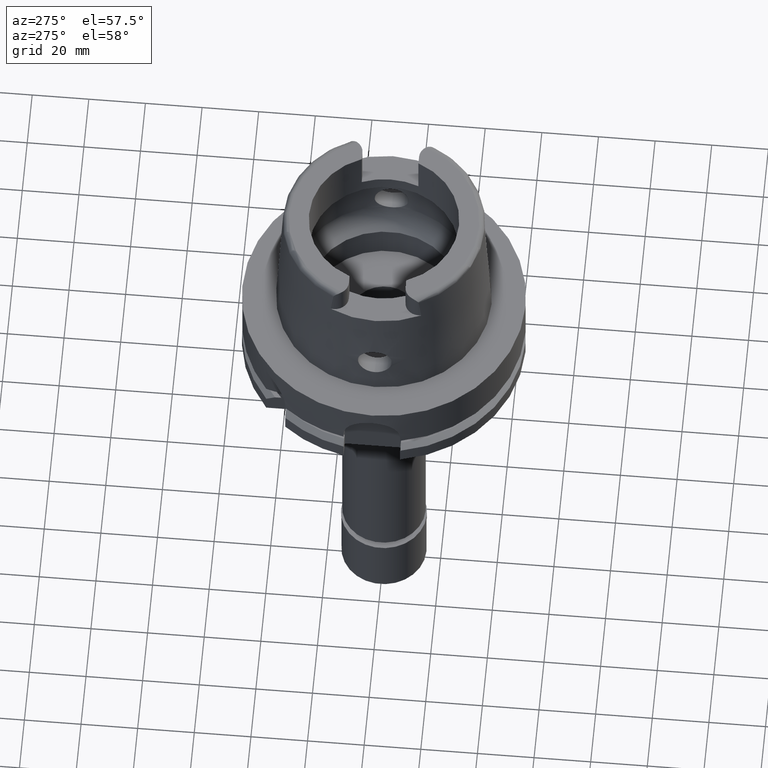
[diagram: clean part render]
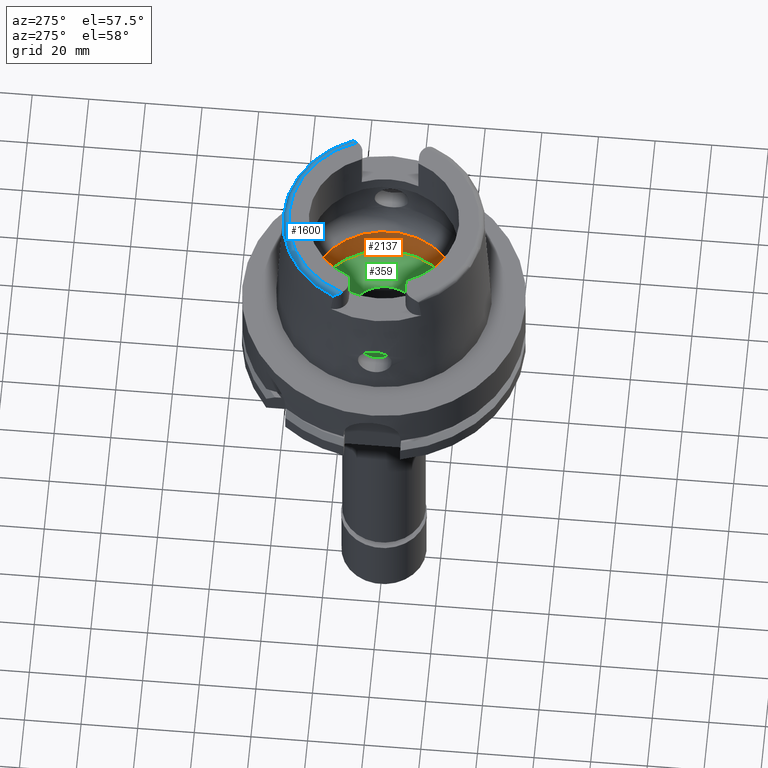
[diagram: same view with three faces highlighted in distinct colors, each labeled with its STEP entity id]
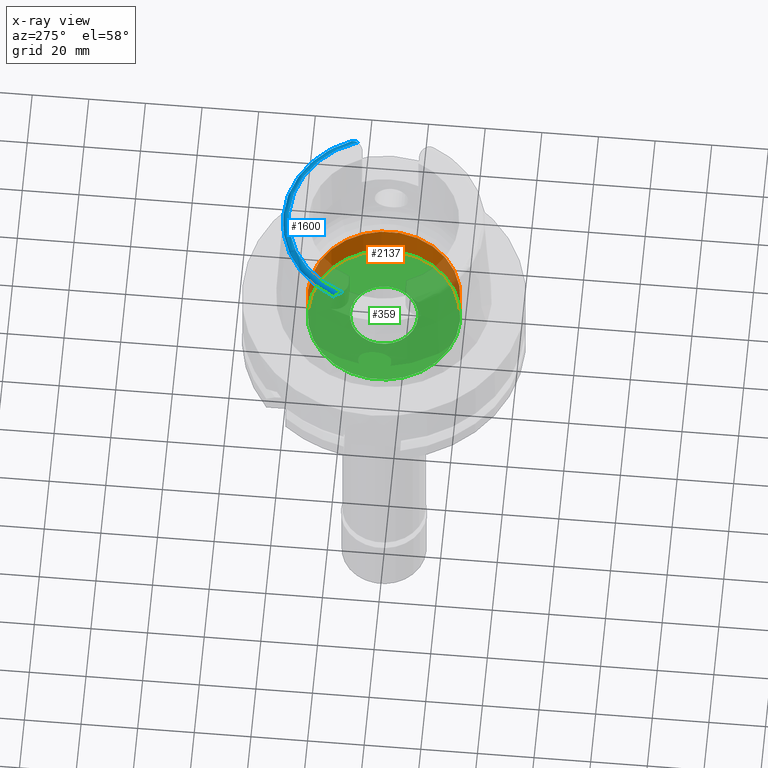
[diagram: x-ray of the same camera — body ghosted, the three highlighted faces saturated]
A machine part, auxiliary view with three faces highlighted in distinct colors.
The next image is the same camera in x-ray (body ghosted, the three faces saturated) — at least one of them is partly hidden behind the body in this view.
Their STEP definitions:

[orange] entity #2137 — the highlighted cylindrical surface (partial cylindrical patch) has radius 26.9 mm, axis along (0, 0, 1).
#103 = LINE ( 'NONE', #919, #5260 ) ;
#109 = VERTEX_POINT ( 'NONE', #2927 ) ;
#223 = CARTESIAN_POINT ( 'NONE',  ( 0.0000000000000000000, -26.89999999999999858, -12.44999999999999929 ) ) ;
#476 = CARTESIAN_POINT ( 'NONE',  ( 0.0000000000000000000, 0.0000000000000000000, -12.44999999999999929 ) ) ;
#510 = ORIENTED_EDGE ( 'NONE', *, *, #3495, .F. ) ;
#616 = CIRCLE ( 'NONE', #4003, 26.89999999999999858 ) ;
#660 = VECTOR ( 'NONE', #1922, 1000.000000000000000 ) ;
#919 = CARTESIAN_POINT ( 'NONE',  ( 0.0000000000000000000, 26.89999999999999858, -12.44999999999999929 ) ) ;
#1005 = VERTEX_POINT ( 'NONE', #4882 ) ;
#1419 = EDGE_LOOP ( 'NONE', ( #4110, #3027, #4325, #510 ) ) ;
#1540 = CARTESIAN_POINT ( 'NONE',  ( 0.0000000000000000000, 0.0000000000000000000, -165.2500000000000000 ) ) ;
#1901 = CYLINDRICAL_SURFACE ( 'NONE', #4065, 26.89999999999999858 ) ;
#1922 = DIRECTION ( 'NONE',  ( 0.0000000000000000000, 0.0000000000000000000, 1.000000000000000000 ) ) ;
#2137 = ADVANCED_FACE ( 'NONE', ( #4884 ), #1901, .F. ) ;
#2258 = CARTESIAN_POINT ( 'NONE',  ( 0.0000000000000000000, -26.89999999999999858, -12.44999999999999929 ) ) ;
#2290 = CIRCLE ( 'NONE', #5530, 26.89999999999999858 ) ;
#2613 = DIRECTION ( 'NONE',  ( 0.0000000000000000000, 0.0000000000000000000, 1.000000000000000000 ) ) ;
#2895 = CARTESIAN_POINT ( 'NONE',  ( 0.0000000000000000000, 0.0000000000000000000, 0.0000000000000000000 ) ) ;
#2927 = CARTESIAN_POINT ( 'NONE',  ( 0.0000000000000000000, 26.89999999999999858, 0.0000000000000000000 ) ) ;
#3027 = ORIENTED_EDGE ( 'NONE', *, *, #4903, .T. ) ;
#3100 = CARTESIAN_POINT ( 'NONE',  ( 0.0000000000000000000, -26.89999999999999858, 0.0000000000000000000 ) ) ;
#3355 = VERTEX_POINT ( 'NONE', #3100 ) ;
#3398 = DIRECTION ( 'NONE',  ( 0.0000000000000000000, 0.0000000000000000000, -1.000000000000000000 ) ) ;
#3495 = EDGE_CURVE ( 'NONE', #1005, #109, #103, .T. ) ;
#3568 = EDGE_CURVE ( 'NONE', #3355, #109, #2290, .T. ) ;
#4003 = AXIS2_PLACEMENT_3D ( 'NONE', #476, #3398, #5185 ) ;
#4065 = AXIS2_PLACEMENT_3D ( 'NONE', #1540, #5001, #4491 ) ;
#4110 = ORIENTED_EDGE ( 'NONE', *, *, #4575, .T. ) ;
#4234 = VERTEX_POINT ( 'NONE', #2258 ) ;
#4325 = ORIENTED_EDGE ( 'NONE', *, *, #3568, .T. ) ;
#4482 = LINE ( 'NONE', #223, #660 ) ;
#4491 = DIRECTION ( 'NONE',  ( 0.0000000000000000000, 1.000000000000000000, 0.0000000000000000000 ) ) ;
#4575 = EDGE_CURVE ( 'NONE', #1005, #4234, #616, .T. ) ;
#4606 = DIRECTION ( 'NONE',  ( 0.0000000000000000000, 0.0000000000000000000, 1.000000000000000000 ) ) ;
#4669 = DIRECTION ( 'NONE',  ( 0.0000000000000000000, -1.000000000000000000, 0.0000000000000000000 ) ) ;
#4882 = CARTESIAN_POINT ( 'NONE',  ( 0.0000000000000000000, 26.89999999999999858, -12.44999999999999929 ) ) ;
#4884 = FACE_OUTER_BOUND ( 'NONE', #1419, .T. ) ;
#4903 = EDGE_CURVE ( 'NONE', #4234, #3355, #4482, .T. ) ;
#5001 = DIRECTION ( 'NONE',  ( 0.0000000000000000000, 0.0000000000000000000, 1.000000000000000000 ) ) ;
#5185 = DIRECTION ( 'NONE',  ( 0.0000000000000000000, 1.000000000000000000, 0.0000000000000000000 ) ) ;
#5260 = VECTOR ( 'NONE', #2613, 1000.000000000000000 ) ;
#5530 = AXIS2_PLACEMENT_3D ( 'NONE', #2895, #4606, #4669 ) ;

[blue] entity #1600 — the highlighted toroidal blend (fillet) surface has major radius 33.5974 mm and minor (blend) radius 2 mm.
#53 = B_SPLINE_CURVE_WITH_KNOTS ( 'NONE', 3,
 ( #1799, #4894, #5229, #1050, #1385, #1781, #4863, #2641, #4389, #573, #2696, #2752, #5266, #1418, #1358, #3101, #525, #1021, #4815, #4016, #76, #976, #493, #3497, #2724, #4449, #4418, #2671, #3991 ),
 .UNSPECIFIED., .F., .F.,
 ( 4, 2, 2, 2, 2, 2, 2, 1, 2, 2, 1, 1, 2, 2, 2, 4 ),
 ( 0.0000000000000000000, 0.1250000000000073552, 0.1875000000000103528, 0.2187500000000111855, 0.2500000000000119904, 0.3750000000000150990, 0.4375000000000184297, 0.4687500000000209832, 0.4843750000000215938, 0.5000000000000222045, 0.5625000000000259792, 0.5937500000000273115, 0.6093750000000275335, 0.6250000000000277556, 0.7500000000000178746, 1.000000000000000000 ),
 .UNSPECIFIED. ) ;
#76 = CARTESIAN_POINT ( 'NONE',  ( 32.03358437685259474, 13.45200396220452532, 49.63952794740040275 ) ) ;
#272 = CARTESIAN_POINT ( 'NONE',  ( -31.84865533242815161, 12.95028188025521843, 49.84128258577506898 ) ) ;
#293 = CARTESIAN_POINT ( 'NONE',  ( -32.05060022305194423, 13.50585534808896604, 49.61480582847629961 ) ) ;
#370 = CARTESIAN_POINT ( 'NONE',  ( -32.25000000000000000, 14.98831011549810555, 48.40078052514072482 ) ) ;
#392 = CIRCLE ( 'NONE', #4694, 33.59743838135999994 ) ;
#402 = EDGE_CURVE ( 'NONE', #2395, #1645, #2281, .T. ) ;
#422 = ORIENTED_EDGE ( 'NONE', *, *, #1288, .F. ) ;
#462 = CARTESIAN_POINT ( 'NONE',  ( 32.25000000000000000, 14.89000000000000057, 48.54599893821999501 ) ) ;
#493 = CARTESIAN_POINT ( 'NONE',  ( 32.00484721514484932, 13.36260176369649599, 49.68012271212078446 ) ) ;
#525 = CARTESIAN_POINT ( 'NONE',  ( 32.12305013374433571, 13.78402776909192262, 49.46829732623770326 ) ) ;
#546 = B_SPLINE_CURVE_WITH_KNOTS ( 'NONE', 3,
 ( #1351, #3150, #4774, #462 ),
 .UNSPECIFIED., .F., .F.,
 ( 4, 4 ),
 ( 0.0000000000000000000, 1.000000000000000000 ),
 .UNSPECIFIED. ) ;
#573 = CARTESIAN_POINT ( 'NONE',  ( 32.21985589497704439, 14.33894686095880822, 49.10652174282023452 ) ) ;
#648 = VERTEX_POINT ( 'NONE', #3962 ) ;
#663 = CARTESIAN_POINT ( 'NONE',  ( -31.94603180457597347, 13.19376978172447679, 49.75179153131855259 ) ) ;
#726 = CARTESIAN_POINT ( 'NONE',  ( -32.25000000000000711, 14.78334643126398795, 48.70354185149673043 ) ) ;
#737 = CARTESIAN_POINT ( 'NONE',  ( -32.25000000000000000, 15.04645420965143998, 48.25208728558405369 ) ) ;
#804 = DIRECTION ( 'NONE',  ( 0.0000000000000000000, 0.0000000000000000000, 1.000000000000000000 ) ) ;
#876 = AXIS2_PLACEMENT_3D ( 'NONE', #1738, #3484, #4350 ) ;
#976 = CARTESIAN_POINT ( 'NONE',  ( 32.01648834572974067, 13.39839008685359190, 49.66402430364270515 ) ) ;
#983 = DIRECTION ( 'NONE',  ( -0.9332215253017949186, 0.3593015233941980191, 0.0000000000000000000 ) ) ;
#1021 = CARTESIAN_POINT ( 'NONE',  ( 32.11972304533656342, 13.76979714336856198, 49.47627511210469464 ) ) ;
#1050 = CARTESIAN_POINT ( 'NONE',  ( 32.24471358137167698, 14.65983521596898775, 48.82317202469005935 ) ) ;
#1056 = CARTESIAN_POINT ( 'NONE',  ( -31.35385269249000473, 12.07161079256999869, 50.00000000000000000 ) ) ;
#1103 = CARTESIAN_POINT ( 'NONE',  ( -32.09820011555270725, 13.68217103455482331, 49.52407980270896104 ) ) ;
#1135 = CARTESIAN_POINT ( 'NONE',  ( -32.20543657444497399, 14.22974535438784827, 49.18581479801423484 ) ) ;
#1167 = CARTESIAN_POINT ( 'NONE',  ( -32.22441016170517258, 14.39020116746728384, 49.06344573666804365 ) ) ;
#1191 = DIRECTION ( 'NONE',  ( 0.0000000000000000000, 1.000000000000000000, 0.0000000000000000000 ) ) ;
#1230 = ORIENTED_EDGE ( 'NONE', *, *, #402, .F. ) ;
#1288 = EDGE_CURVE ( 'NONE', #3131, #4650, #2827, .T. ) ;
#1323 = CARTESIAN_POINT ( 'NONE',  ( 32.24997259521845194, 15.06456602766139952, 48.09965195381819569 ) ) ;
#1333 = EDGE_CURVE ( 'NONE', #648, #2395, #2828, .T. ) ;
#1338 = VERTEX_POINT ( 'NONE', #2580 ) ;
#1351 = CARTESIAN_POINT ( 'NONE',  ( 32.24997259521845194, 15.06456602766139952, 48.09965195381819569 ) ) ;
#1358 = CARTESIAN_POINT ( 'NONE',  ( 32.14075745467751943, 13.86235682913278566, 49.42359902432151841 ) ) ;
#1385 = CARTESIAN_POINT ( 'NONE',  ( 32.24269482642057483, 14.61965091436688802, 48.86293435732329016 ) ) ;
#1403 = ORIENTED_EDGE ( 'NONE', *, *, #1567, .F. ) ;
#1418 = CARTESIAN_POINT ( 'NONE',  ( 32.15035616710412114, 13.90839442980767870, 49.39623395247237170 ) ) ;
#1427 = ORIENTED_EDGE ( 'NONE', *, *, #1333, .F. ) ;
#1509 = CARTESIAN_POINT ( 'NONE',  ( -32.21561119648490745, 14.31103722215217644, 49.12516899632021961 ) ) ;
#1567 = EDGE_CURVE ( 'NONE', #4650, #648, #3370, .T. ) ;
#1591 = CARTESIAN_POINT ( 'NONE',  ( -32.21871882278152555, 14.33771142627095863, 49.10473823749725852 ) ) ;
#1600 = ADVANCED_FACE ( 'NONE', ( #1653 ), #2098, .T. ) ;
#1645 = VERTEX_POINT ( 'NONE', #1323 ) ;
#1653 = FACE_OUTER_BOUND ( 'NONE', #3333, .T. ) ;
#1738 = CARTESIAN_POINT ( 'NONE',  ( 0.0000000000000000000, 0.0000000000000000000, 48.09987853799000135 ) ) ;
#1781 = CARTESIAN_POINT ( 'NONE',  ( 32.23856140261261061, 14.55537970194135866, 48.92266969116491282 ) ) ;
#1799 = CARTESIAN_POINT ( 'NONE',  ( 32.25000000000000000, 14.89000000000000057, 48.54599893821999501 ) ) ;
#1806 = CARTESIAN_POINT ( 'NONE',  ( 0.0000000000000000000, 0.0000000000000000000, 50.00000000000000000 ) ) ;
#1976 = CARTESIAN_POINT ( 'NONE',  ( -32.19751839685224581, 14.17385751265201321, 49.22538336611035703 ) ) ;
#1998 = CARTESIAN_POINT ( 'NONE',  ( -31.52580864303484276, 12.31467416180609753, 50.00000000000001421 ) ) ;
#2072 = EDGE_CURVE ( 'NONE', #1645, #2854, #546, .T. ) ;
#2098 = TOROIDAL_SURFACE ( 'NONE', #4348, 33.59743838135999994, 2.000000000000000000 ) ;
#2281 = CIRCLE ( 'NONE', #3988, 35.59494289391000166 ) ;
#2395 = VERTEX_POINT ( 'NONE', #3317 ) ;
#2510 = CARTESIAN_POINT ( 'NONE',  ( 32.25000000000000000, 14.89000000000000057, 48.54599893821999501 ) ) ;
#2520 = CARTESIAN_POINT ( 'NONE',  ( 0.0000000000000000000, 0.0000000000000000000, 48.00000000000000000 ) ) ;
#2580 = CARTESIAN_POINT ( 'NONE',  ( 31.35385269249000473, 12.07161079256999869, 50.00000000000000000 ) ) ;
#2641 = CARTESIAN_POINT ( 'NONE',  ( 32.23345006919992528, 14.48778838902435240, 48.98248155408305138 ) ) ;
#2671 = CARTESIAN_POINT ( 'NONE',  ( 31.52568836141654529, 12.31450414119729153, 50.00000000000002132 ) ) ;
#2696 = CARTESIAN_POINT ( 'NONE',  ( 32.20664777821814795, 14.23062996685091619, 49.18720478350838476 ) ) ;
#2724 = CARTESIAN_POINT ( 'NONE',  ( 31.94088385687079423, 13.17310582874606695, 49.76282308352523387 ) ) ;
#2752 = CARTESIAN_POINT ( 'NONE',  ( 32.17896608570389105, 14.05835835281099655, 49.30308966736923537 ) ) ;
#2756 = CARTESIAN_POINT ( 'NONE',  ( -31.68288935703481712, 12.58419321580699091, 49.95446596470396372 ) ) ;
#2812 = CARTESIAN_POINT ( 'NONE',  ( -32.14607412434682487, 13.87970466236931522, 49.41546850929212553 ) ) ;
#2827 = B_SPLINE_CURVE_WITH_KNOTS ( 'NONE', 3,
 ( #1056, #1998, #2756, #272, #4559, #663, #3243, #5387, #2848, #4948, #293, #5445, #1103, #3750, #3629, #2812, #5358, #1976, #1135, #1509, #1591, #1167, #3218, #3683, #726, #2873 ),
 .UNSPECIFIED., .F., .F.,
 ( 4, 2, 1, 1, 2, 2, 1, 1, 2, 2, 2, 2, 2, 2, 4 ),
 ( 0.0000000000000000000, 0.2499999999999893974, 0.3124999999999877320, 0.3437499999999869549, 0.3593749999999864553, 0.3749999999999859557, 0.4374999999999812372, 0.4687499999999805711, 0.4843749999999820144, 0.4999999999999834577, 0.6249999999999847899, 0.6874999999999859002, 0.7187499999999864553, 0.7499999999999870104, 1.000000000000000000 ),
 .UNSPECIFIED. ) ;
#2828 = CIRCLE ( 'NONE', #876, 35.59494289390999455 ) ;
#2848 = CARTESIAN_POINT ( 'NONE',  ( -31.98703129070875306, 13.30956383121458053, 49.70337412728048321 ) ) ;
#2854 = VERTEX_POINT ( 'NONE', #2510 ) ;
#2873 = CARTESIAN_POINT ( 'NONE',  ( -32.25000000000000000, 14.89000000000000057, 48.54599893821999501 ) ) ;
#3009 = EDGE_CURVE ( 'NONE', #2854, #1338, #53, .T. ) ;
#3101 = CARTESIAN_POINT ( 'NONE',  ( 32.13025702566104513, 13.81547070813711109, 49.45048225143588638 ) ) ;
#3131 = VERTEX_POINT ( 'NONE', #3463 ) ;
#3150 = CARTESIAN_POINT ( 'NONE',  ( 32.25000000000000000, 15.04645014019782323, 48.25212973643510850 ) ) ;
#3218 = CARTESIAN_POINT ( 'NONE',  ( -32.22712110059583779, 14.41739482568338460, 49.04143954880796485 ) ) ;
#3243 = CARTESIAN_POINT ( 'NONE',  ( -31.96653983827772194, 13.25090531448953080, 49.72820814716053661 ) ) ;
#3317 = CARTESIAN_POINT ( 'NONE',  ( 0.0000000000000000000, 35.59494289391000166, 48.09987853799000135 ) ) ;
#3328 = CARTESIAN_POINT ( 'NONE',  ( 0.0000000000000000000, 0.0000000000000000000, 48.09987853799000135 ) ) ;
#3333 = EDGE_LOOP ( 'NONE', ( #4038, #5071, #3866, #1230, #1427, #1403, #422 ) ) ;
#3370 = B_SPLINE_CURVE_WITH_KNOTS ( 'NONE', 3,
 ( #3428, #370, #737, #4631 ),
 .UNSPECIFIED., .F., .F.,
 ( 4, 4 ),
 ( 0.0000000000000000000, 1.000000000000000000 ),
 .UNSPECIFIED. ) ;
#3428 = CARTESIAN_POINT ( 'NONE',  ( -32.25000000000000000, 14.89000000000000057, 48.54599893821999501 ) ) ;
#3463 = CARTESIAN_POINT ( 'NONE',  ( -31.35385269249000473, 12.07161079256999869, 50.00000000000000000 ) ) ;
#3484 = DIRECTION ( 'NONE',  ( 0.0000000000000000000, 0.0000000000000000000, -1.000000000000000000 ) ) ;
#3497 = CARTESIAN_POINT ( 'NONE',  ( 31.99933322214655718, 13.34595177171430969, 49.68750353876725256 ) ) ;
#3629 = CARTESIAN_POINT ( 'NONE',  ( -32.11169432998860174, 13.73630882401080910, 49.49480066588481009 ) ) ;
#3683 = CARTESIAN_POINT ( 'NONE',  ( -32.24706390246712573, 14.63341855779697909, 48.86204445911135963 ) ) ;
#3750 = CARTESIAN_POINT ( 'NONE',  ( -32.10702340972090951, 13.71725264518007670, 49.50520854913892066 ) ) ;
#3866 = ORIENTED_EDGE ( 'NONE', *, *, #2072, .F. ) ;
#3962 = CARTESIAN_POINT ( 'NONE',  ( -32.25000136835999598, 15.06443228245999855, 48.09991921955000294 ) ) ;
#3988 = AXIS2_PLACEMENT_3D ( 'NONE', #3328, #5305, #1191 ) ;
#3991 = CARTESIAN_POINT ( 'NONE',  ( 31.35385269249000473, 12.07161079256999869, 50.00000000000000000 ) ) ;
#4016 = CARTESIAN_POINT ( 'NONE',  ( 32.07094862826212989, 13.57658464881920146, 49.57992857815872867 ) ) ;
#4023 = DIRECTION ( 'NONE',  ( 0.0000000000000000000, 0.0000000000000000000, -1.000000000000000000 ) ) ;
#4038 = ORIENTED_EDGE ( 'NONE', *, *, #4737, .T. ) ;
#4141 = DIRECTION ( 'NONE',  ( -0.0004184165975219878483, -0.9999999124637716230, 0.0000000000000000000 ) ) ;
#4348 = AXIS2_PLACEMENT_3D ( 'NONE', #2520, #804, #4141 ) ;
#4350 = DIRECTION ( 'NONE',  ( -0.9060276961592781397, 0.4232183996381900792, 0.0000000000000000000 ) ) ;
#4389 = CARTESIAN_POINT ( 'NONE',  ( 32.23158118670009742, 14.46564640289092551, 49.00138487765061512 ) ) ;
#4400 = CARTESIAN_POINT ( 'NONE',  ( -32.25000000000000000, 14.89000000000000057, 48.54599893821999501 ) ) ;
#4418 = CARTESIAN_POINT ( 'NONE',  ( 31.68243852424293294, 12.58328698101560938, 49.95469546644832803 ) ) ;
#4449 = CARTESIAN_POINT ( 'NONE',  ( 31.88168829846219765, 13.02318950028374722, 49.81878186579321266 ) ) ;
#4559 = CARTESIAN_POINT ( 'NONE',  ( -31.89577878947797629, 13.06157469809162386, 49.80326241682335109 ) ) ;
#4631 = CARTESIAN_POINT ( 'NONE',  ( -32.25000136835999598, 15.06443228245999855, 48.09991921955000294 ) ) ;
#4650 = VERTEX_POINT ( 'NONE', #4400 ) ;
#4694 = AXIS2_PLACEMENT_3D ( 'NONE', #1806, #4023, #983 ) ;
#4737 = EDGE_CURVE ( 'NONE', #3131, #1338, #392, .T. ) ;
#4774 = CARTESIAN_POINT ( 'NONE',  ( 32.25000000000000000, 14.98827129953760995, 48.40083786201552840 ) ) ;
#4815 = CARTESIAN_POINT ( 'NONE',  ( 32.09875892250283869, 13.68235178493456594, 49.52465848222081490 ) ) ;
#4863 = CARTESIAN_POINT ( 'NONE',  ( 32.23699897015121252, 14.53329034194270442, 48.94259677492743066 ) ) ;
#4894 = CARTESIAN_POINT ( 'NONE',  ( 32.25000000000000711, 14.83657777754104323, 48.62491137087459947 ) ) ;
#4948 = CARTESIAN_POINT ( 'NONE',  ( -32.01725635444056905, 13.39898989140517926, 49.66439331418748537 ) ) ;
#5071 = ORIENTED_EDGE ( 'NONE', *, *, #3009, .F. ) ;
#5229 = CARTESIAN_POINT ( 'NONE',  ( 32.24915845306939133, 14.77233053619771930, 48.70406869657391979 ) ) ;
#5266 = CARTESIAN_POINT ( 'NONE',  ( 32.16842482837031980, 13.99930505463912134, 49.34086134912762134 ) ) ;
#5305 = DIRECTION ( 'NONE',  ( 0.0000000000000000000, 0.0000000000000000000, -1.000000000000000000 ) ) ;
#5358 = CARTESIAN_POINT ( 'NONE',  ( -32.16981040393972080, 14.00129542436242680, 49.34150317129913788 ) ) ;
#5387 = CARTESIAN_POINT ( 'NONE',  ( -31.97998138144715696, 13.28909977336081560, 49.71214712811575964 ) ) ;
#5445 = CARTESIAN_POINT ( 'NONE',  ( -32.08463122093078823, 13.62945760271872864, 49.55203536931403363 ) ) ;

[green] entity #359 — the highlighted planar face has unit normal (0, 0, 1).
#2 = PLANE ( 'NONE',  #4356 ) ;
#65 = CARTESIAN_POINT ( 'NONE',  ( 0.0000000000000000000, 12.00000000000000000, -12.44999999999999929 ) ) ;
#117 = CARTESIAN_POINT ( 'NONE',  ( 0.0000000000000000000, 0.0000000000000000000, -12.44999999999999929 ) ) ;
#359 = ADVANCED_FACE ( 'NONE', ( #4793, #5158 ), #2, .T. ) ;
#397 = CIRCLE ( 'NONE', #3260, 26.89999999999999858 ) ;
#445 = DIRECTION ( 'NONE',  ( 0.0000000000000000000, 0.0000000000000000000, 1.000000000000000000 ) ) ;
#476 = CARTESIAN_POINT ( 'NONE',  ( 0.0000000000000000000, 0.0000000000000000000, -12.44999999999999929 ) ) ;
#616 = CIRCLE ( 'NONE', #4003, 26.89999999999999858 ) ;
#635 = CARTESIAN_POINT ( 'NONE',  ( 0.0000000000000000000, -12.00000000000000000, -12.44999999999999929 ) ) ;
#647 = VERTEX_POINT ( 'NONE', #635 ) ;
#762 = AXIS2_PLACEMENT_3D ( 'NONE', #1517, #1009, #5311 ) ;
#1005 = VERTEX_POINT ( 'NONE', #4882 ) ;
#1009 = DIRECTION ( 'NONE',  ( 0.0000000000000000000, 0.0000000000000000000, 1.000000000000000000 ) ) ;
#1138 = EDGE_CURVE ( 'NONE', #647, #5118, #5337, .T. ) ;
#1277 = EDGE_LOOP ( 'NONE', ( #4169, #4105 ) ) ;
#1517 = CARTESIAN_POINT ( 'NONE',  ( 0.0000000000000000000, 0.0000000000000000000, -12.44999999999999929 ) ) ;
#2136 = DIRECTION ( 'NONE',  ( 0.0000000000000000000, -1.000000000000000000, 0.0000000000000000000 ) ) ;
#2201 = ORIENTED_EDGE ( 'NONE', *, *, #5382, .F. ) ;
#2258 = CARTESIAN_POINT ( 'NONE',  ( 0.0000000000000000000, -26.89999999999999858, -12.44999999999999929 ) ) ;
#2359 = CIRCLE ( 'NONE', #762, 12.00000000000000000 ) ;
#2657 = CARTESIAN_POINT ( 'NONE',  ( 0.0000000000000000000, 0.0000000000000000000, -12.44999999999999929 ) ) ;
#2896 = ORIENTED_EDGE ( 'NONE', *, *, #1138, .F. ) ;
#2984 = CARTESIAN_POINT ( 'NONE',  ( 0.0000000000000000000, 0.0000000000000000000, -12.44999999999999929 ) ) ;
#3118 = DIRECTION ( 'NONE',  ( 0.0000000000000000000, 0.0000000000000000000, -1.000000000000000000 ) ) ;
#3260 = AXIS2_PLACEMENT_3D ( 'NONE', #117, #3118, #4832 ) ;
#3398 = DIRECTION ( 'NONE',  ( 0.0000000000000000000, 0.0000000000000000000, -1.000000000000000000 ) ) ;
#3452 = AXIS2_PLACEMENT_3D ( 'NONE', #2984, #445, #2136 ) ;
#3973 = EDGE_LOOP ( 'NONE', ( #2201, #2896 ) ) ;
#4003 = AXIS2_PLACEMENT_3D ( 'NONE', #476, #3398, #5185 ) ;
#4105 = ORIENTED_EDGE ( 'NONE', *, *, #5493, .F. ) ;
#4169 = ORIENTED_EDGE ( 'NONE', *, *, #4575, .F. ) ;
#4234 = VERTEX_POINT ( 'NONE', #2258 ) ;
#4356 = AXIS2_PLACEMENT_3D ( 'NONE', #2657, #4375, #5244 ) ;
#4375 = DIRECTION ( 'NONE',  ( 0.0000000000000000000, 0.0000000000000000000, 1.000000000000000000 ) ) ;
#4575 = EDGE_CURVE ( 'NONE', #1005, #4234, #616, .T. ) ;
#4793 = FACE_OUTER_BOUND ( 'NONE', #1277, .T. ) ;
#4832 = DIRECTION ( 'NONE',  ( 0.0000000000000000000, -1.000000000000000000, 0.0000000000000000000 ) ) ;
#4882 = CARTESIAN_POINT ( 'NONE',  ( 0.0000000000000000000, 26.89999999999999858, -12.44999999999999929 ) ) ;
#5118 = VERTEX_POINT ( 'NONE', #65 ) ;
#5158 = FACE_BOUND ( 'NONE', #3973, .T. ) ;
#5185 = DIRECTION ( 'NONE',  ( 0.0000000000000000000, 1.000000000000000000, 0.0000000000000000000 ) ) ;
#5244 = DIRECTION ( 'NONE',  ( 1.000000000000000000, 0.0000000000000000000, 0.0000000000000000000 ) ) ;
#5311 = DIRECTION ( 'NONE',  ( 0.0000000000000000000, 1.000000000000000000, 0.0000000000000000000 ) ) ;
#5337 = CIRCLE ( 'NONE', #3452, 12.00000000000000000 ) ;
#5382 = EDGE_CURVE ( 'NONE', #5118, #647, #2359, .T. ) ;
#5493 = EDGE_CURVE ( 'NONE', #4234, #1005, #397, .T. ) ;